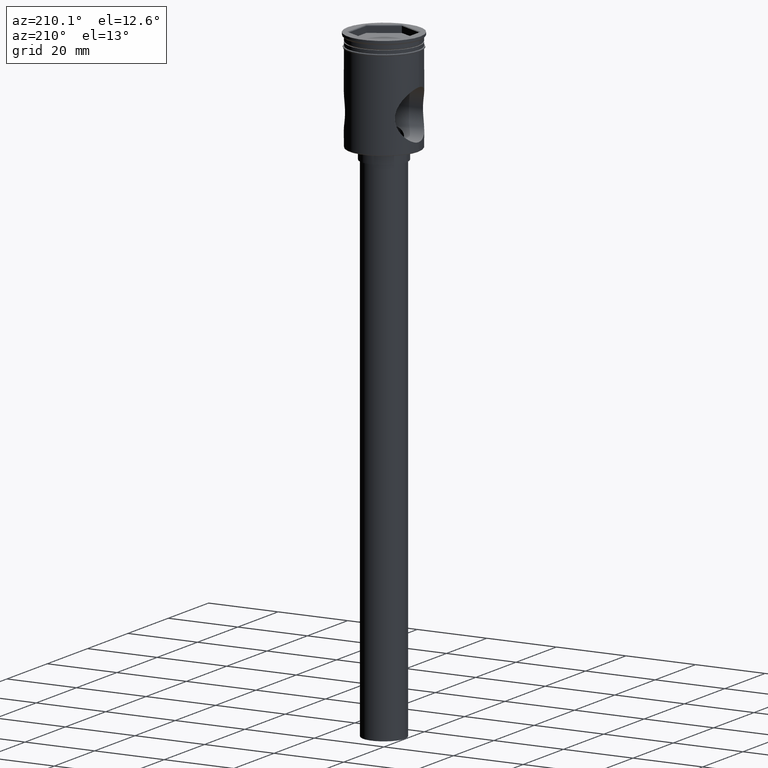
[diagram: clean part render]
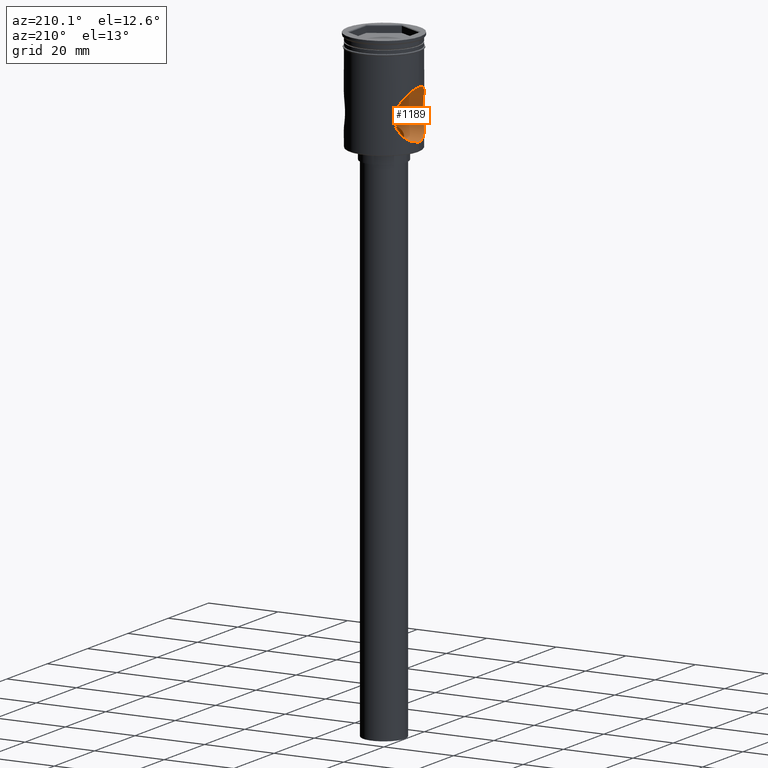
[diagram: same view with one face highlighted and labeled with its STEP entity id]
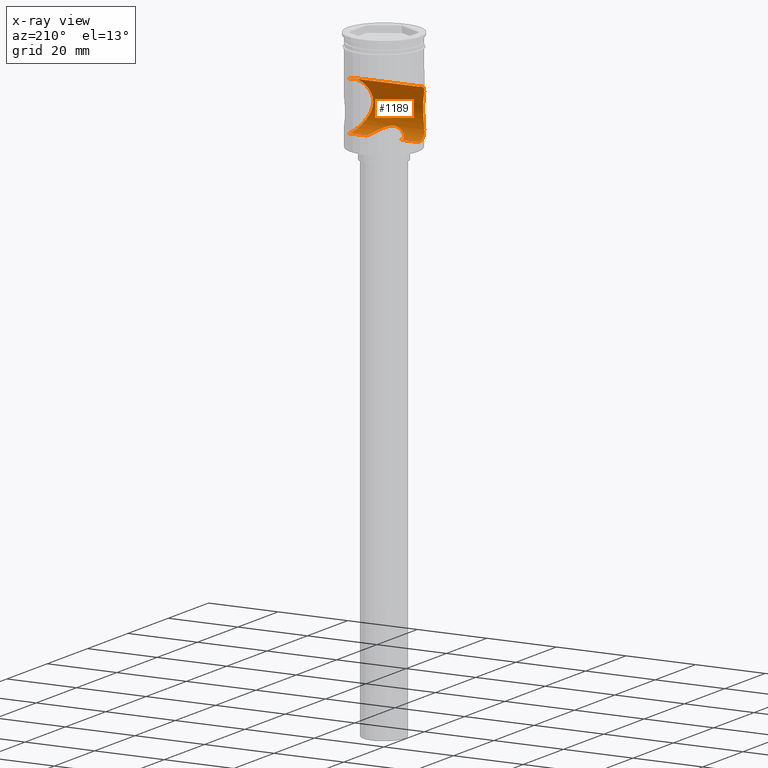
[diagram: x-ray of the same camera — body ghosted, the highlighted face saturated]
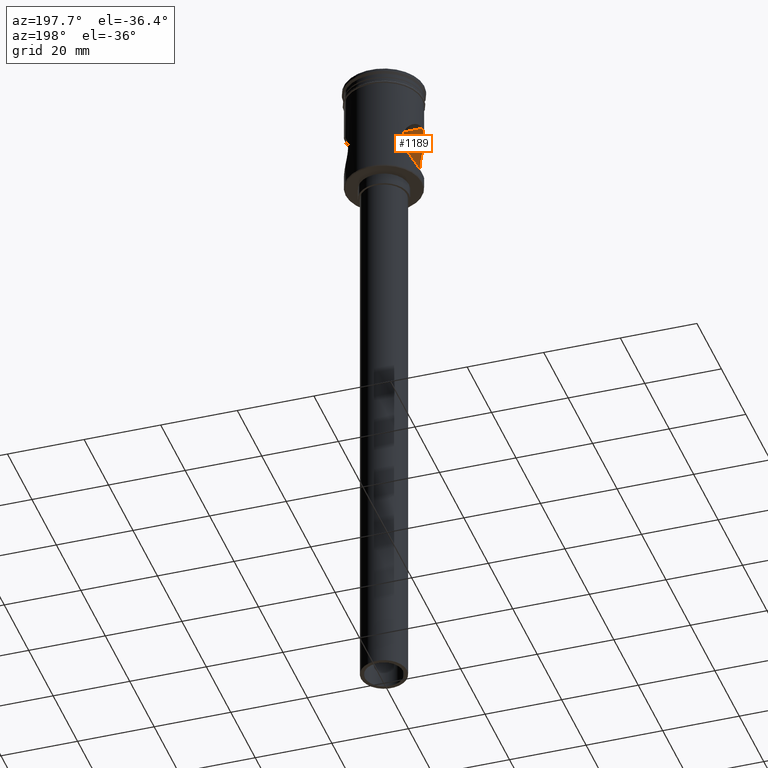
[diagram: same view with one face highlighted and labeled with its STEP entity id]
A machine part, auxiliary view. The second image highlights one B-rep face of the part: STEP entity #1189.
The next image is the same camera in x-ray: the body ghosted, the highlighted face saturated — about 0% of this face is hidden behind the body in this view.
A second angle (auxiliary view) of the same face is appended — the face is thin or edge-on in the first view.
In plain terms, the highlighted cylindrical surface (edge-blend (fillet) strip) has radius 7 mm, axis along (1, -0, -0).
Its self-contained STEP definition (entity closure, byte-faithful):
#5 = CARTESIAN_POINT ( 'NONE',  ( 7.140877080678153632, -7.000562488098498903, -19.52635574343557678 ) ) ;
#8 = CARTESIAN_POINT ( 'NONE',  ( -7.503273641266416050, -6.611317046147628496, -22.31171733569519944 ) ) ;
#13 = CARTESIAN_POINT ( 'NONE',  ( 9.347318963212909892, -3.576349491498993505, -13.96584429441085717 ) ) ;
#14 = CARTESIAN_POINT ( 'NONE',  ( 4.964146802801480796, -0.6862246212768612352, -26.97426726773488426 ) ) ;
#27 = CARTESIAN_POINT ( 'NONE',  ( -7.964400624432382614, -6.054727537725130837, -23.54044438658495153 ) ) ;
#32 = CARTESIAN_POINT ( 'NONE',  ( 8.503943671969897977, -5.273689396165734067, -24.62422230267287304 ) ) ;
#33 = CARTESIAN_POINT ( 'NONE',  ( 0.3425869708826779769, -4.991127287266564849, -24.90808053980701331 ) ) ;
#39 = CARTESIAN_POINT ( 'NONE',  ( -0.6797838618289542278, -4.956528279916297741, -24.94301948479047937 ) ) ;
#41 = CARTESIAN_POINT ( 'NONE',  ( -9.029975738911995009, -4.315133941133940887, -14.47019995321800501 ) ) ;
#55 = CARTESIAN_POINT ( 'NONE',  ( 9.965325511264428116, -0.9525671816038108197, -26.95070955909274346 ) ) ;
#61 = CARTESIAN_POINT ( 'NONE',  ( 9.826638545464751573, -1.868062541291061418, -26.75021854738501403 ) ) ;
#70 = DIRECTION ( 'NONE',  ( 1.000000000000000000, -0.000000000000000000, -0.000000000000000000 ) ) ;
#99 = VECTOR ( 'NONE', #70, 1000.000000000000000 ) ;
#102 = DIRECTION ( 'NONE',  ( 1.000000000000000000, -0.000000000000000000, -0.000000000000000000 ) ) ;
#103 = ORIENTED_EDGE ( 'NONE', *, *, #1160, .F. ) ;
#125 = CARTESIAN_POINT ( 'NONE',  ( -0.8464983709631617170, -4.930653397323766285, -24.96899257414971984 ) ) ;
#128 = CARTESIAN_POINT ( 'NONE',  ( -9.029024665842506181, -4.317593744654968368, -25.52832831042054451 ) ) ;
#139 = CARTESIAN_POINT ( 'NONE',  ( 7.723089038241833570, -6.353518016691835690, -22.94679462982523077 ) ) ;
#150 = CARTESIAN_POINT ( 'NONE',  ( -4.964727920279955242, -0.6817536040784992757, -26.97468307285332045 ) ) ;
#158 = CARTESIAN_POINT ( 'NONE',  ( 2.247388876111526379, -4.469310144529878848, -25.38840017492477585 ) ) ;
#160 = CARTESIAN_POINT ( 'NONE',  ( -8.315624236750039699, -5.562535070965513029, -24.27231501587448292 ) ) ;
#161 = ORIENTED_EDGE ( 'NONE', *, *, #378, .F. ) ;
#187 = CARTESIAN_POINT ( 'NONE',  ( -10.50000000000000000, 0.000000000000000000, -27.00000000000000355 ) ) ;
#229 = VERTEX_POINT ( 'NONE', #460 ) ;
#233 = CARTESIAN_POINT ( 'NONE',  ( 7.322655419112947150, -6.810500286563441641, -18.36528137380276249 ) ) ;
#234 = CARTESIAN_POINT ( 'NONE',  ( -4.725939526158935422, -1.665396429013263901, -26.80629165224697985 ) ) ;
#243 = CARTESIAN_POINT ( 'NONE',  ( 0.8487738258844477190, -4.930306376958239589, -24.96934192273835507 ) ) ;
#246 = CARTESIAN_POINT ( 'NONE',  ( -8.053311715077983379, -5.930176009131116643, -16.27420902905398847 ) ) ;
#250 = CARTESIAN_POINT ( 'NONE',  ( 7.377383315084116155, -6.751497144694275754, -18.13709901651008494 ) ) ;
#251 = CARTESIAN_POINT ( 'NONE',  ( 0.6797355553548922735, -4.956478286556073698, -24.94306880164815254 ) ) ;
#253 = CARTESIAN_POINT ( 'NONE',  ( -7.801002067758137315, -6.258004569467827238, -16.85560777748650096 ) ) ;
#257 = CARTESIAN_POINT ( 'NONE',  ( 9.991596185262174856, -0.4736682493084634071, -13.01198930438257939 ) ) ;
#258 = CARTESIAN_POINT ( 'NONE',  ( 4.307860968316788330, -2.558034936992927832, -26.52217995017509722 ) ) ;
#260 = CARTESIAN_POINT ( 'NONE',  ( -9.991574020215788110, -0.4743472386555552256, -13.01202085301403244 ) ) ;
#272 = CARTESIAN_POINT ( 'NONE',  ( -9.999999999999996447, 0.000000000000000000, -27.00000000000000355 ) ) ;
#301 = EDGE_CURVE ( 'NONE', #846, #498, #799, .T. ) ;
#347 = CYLINDRICAL_SURFACE ( 'NONE', #932, 6.999999999999999112 ) ;
#352 = CARTESIAN_POINT ( 'NONE',  ( 9.028965068475372391, -4.317457269925927044, -14.47181101200376219 ) ) ;
#353 = CARTESIAN_POINT ( 'NONE',  ( -2.249958316707900252, -4.476817073581181639, -25.38387512191017237 ) ) ;
#368 = CARTESIAN_POINT ( 'NONE',  ( 7.141989287018506438, -6.999427809131204548, -20.49012689816928301 ) ) ;
#371 = CARTESIAN_POINT ( 'NONE',  ( -9.343068346694407111, -3.570972421456891865, -13.97506645596566699 ) ) ;
#376 = CARTESIAN_POINT ( 'NONE',  ( 7.717429328536873356, -6.360383034377455225, -17.06803860621226221 ) ) ;
#377 = CARTESIAN_POINT ( 'NONE',  ( -1.334167910880776686, -4.821543316883925456, -25.07516089806349768 ) ) ;
#378 = EDGE_CURVE ( 'NONE', #972, #1120, #1009, .T. ) ;
#380 = CARTESIAN_POINT ( 'NONE',  ( -7.720495804876727597, -6.356685689900114511, -17.05985571267803991 ) ) ;
#384 = CARTESIAN_POINT ( 'NONE',  ( -2.527018621183717784, -4.325854713192931023, -25.50766513706255623 ) ) ;
#386 = CARTESIAN_POINT ( 'NONE',  ( -9.999999999999992895, -0.2371603752032593604, -12.99999999999999822 ) ) ;
#396 = CARTESIAN_POINT ( 'NONE',  ( -7.967226261725709691, -6.044961550507585990, -16.46329765270407464 ) ) ;
#422 = CARTESIAN_POINT ( 'NONE',  ( -10.50000000000000000, 0.000000000000000000, -27.00000000000000355 ) ) ;
#456 = CARTESIAN_POINT ( 'NONE',  ( 5.000000000000000888, 5.559607670071811640E-22, -27.00000000000000355 ) ) ;
#460 = CARTESIAN_POINT ( 'NONE',  ( -9.999999999999994671, 1.229780025839397734E-15, -13.00000000000000355 ) ) ;
#471 = LINE ( 'NONE', #1534, #736 ) ;
#478 = CARTESIAN_POINT ( 'NONE',  ( -3.295328282897207917, -3.773598239158960865, -25.90136906536974948 ) ) ;
#480 = CARTESIAN_POINT ( 'NONE',  ( -7.236111701560243858, -6.902383710959965057, -21.18811620976742915 ) ) ;
#486 = CARTESIAN_POINT ( 'NONE',  ( 5.000000000000005329, -0.3402173002877499908, -27.00000000000001421 ) ) ;
#488 = CARTESIAN_POINT ( 'NONE',  ( -9.735967975428483356, -2.325336189795351949, -13.38128717480536167 ) ) ;
#495 = CARTESIAN_POINT ( 'NONE',  ( -3.945877027014517591, -3.087718830034456463, -26.28892569280893809 ) ) ;
#497 = CARTESIAN_POINT ( 'NONE',  ( -7.141373392009655596, -7.000056148497765030, -19.76373034873125434 ) ) ;
#498 = VERTEX_POINT ( 'NONE', #1255 ) ;
#500 = CARTESIAN_POINT ( 'NONE',  ( 8.860185483737918588, -4.650373212660213085, -25.25064384002004303 ) ) ;
#501 = CARTESIAN_POINT ( 'NONE',  ( 3.744450800041878580, -3.328521687271348561, -26.16341259425989918 ) ) ;
#504 = CARTESIAN_POINT ( 'NONE',  ( -9.493823586986472662, -3.171854784083766532, -26.25704949909892605 ) ) ;
#510 = CARTESIAN_POINT ( 'NONE',  ( -9.485754788391531633, -3.172574074835091462, -13.75608760595409308 ) ) ;
#571 = ORIENTED_EDGE ( 'NONE', *, *, #1209, .T. ) ;
#592 = CARTESIAN_POINT ( 'NONE',  ( 8.853430568094129427, -4.663155653245506294, -14.76073180007296415 ) ) ;
#593 = CARTESIAN_POINT ( 'NONE',  ( -4.467234366927137046, -2.269772407451150720, -26.62927481249574413 ) ) ;
#599 = CARTESIAN_POINT ( 'NONE',  ( 9.832878540591767802, -1.879722866531851500, -13.24054240779418912 ) ) ;
#606 = CARTESIAN_POINT ( 'NONE',  ( 7.802583678074496376, -6.256037095215745580, -23.14831442975813758 ) ) ;
#617 = CARTESIAN_POINT ( 'NONE',  ( 8.056358060451358938, -5.926078000082590336, -23.73242365119358865 ) ) ;
#618 = CARTESIAN_POINT ( 'NONE',  ( -4.828544323845742170, -1.341070845160088787, -26.87840976764849188 ) ) ;
#627 = CARTESIAN_POINT ( 'NONE',  ( -7.141483849871206324, -6.999943458932624374, -20.23958506209359243 ) ) ;
#650 = LINE ( 'NONE', #187, #99 ) ;
#695 = DIRECTION ( 'NONE',  ( 0.000000000000000000, 0.000000000000000000, -1.000000000000000000 ) ) ;
#708 = CARTESIAN_POINT ( 'NONE',  ( -1.173690506892070884, -4.863162860794930431, -25.03506475786364049 ) ) ;
#710 = CARTESIAN_POINT ( 'NONE',  ( -9.932071413309429886, -1.186883990593140314, -13.09730212679606964 ) ) ;
#714 = CARTESIAN_POINT ( 'NONE',  ( 2.527940221282912070, -4.316828484673395749, -25.51131394923564599 ) ) ;
#717 = CARTESIAN_POINT ( 'NONE',  ( -9.832512437962641627, -1.881659858244549621, -13.24107387809922720 ) ) ;
#721 = CARTESIAN_POINT ( 'NONE',  ( 7.574535355013245486, -6.529908853628298537, -22.53201108648861961 ) ) ;
#722 = CARTESIAN_POINT ( 'NONE',  ( 3.053609598594927199, -3.971660509004135697, -25.76830406484121028 ) ) ;
#731 = CARTESIAN_POINT ( 'NONE',  ( -7.153235015771535643, -6.988014041043822289, -19.52714534028609350 ) ) ;
#736 = VECTOR ( 'NONE', #1164, 1000.000000000000000 ) ;
#739 = DIRECTION ( 'NONE',  ( 1.000000000000000000, -0.000000000000000000, -0.000000000000000000 ) ) ;
#740 = CARTESIAN_POINT ( 'NONE',  ( -5.000000000000000888, 0.000000000000000000, -27.00000000000001066 ) ) ;
#742 = CARTESIAN_POINT ( 'NONE',  ( -7.325106434378655607, -6.807865243658027588, -21.64544578927128882 ) ) ;
#758 = B_SPLINE_CURVE_WITH_KNOTS ( 'NONE', 3,
 ( #740, #1420, #150, #618, #234, #593, #964, #495, #844, #478, #1328, #384, #353, #826, #1200, #377, #708, #125, #39, #1305, #834, #1087, #33, #251, #243, #851, #1295, #1076, #158, #714, #1068, #722, #1321, #501, #1193, #258, #1211, #970, #1443, #14, #486, #858 ),
 .UNSPECIFIED., .F., .F.,
 ( 4, 2, 2, 2, 2, 2, 2, 2, 2, 2, 2, 2, 2, 2, 2, 2, 2, 2, 2, 2, 4 ),
 ( 0.000000000000000000, 0.001017778397128051363, 0.002035556794256102725, 0.003053335191384154088, 0.004071113588512205450, 0.005088891985640256813, 0.006106670382768309910, 0.006615559581332337326, 0.007124448779896364742, 0.007633337978460393025, 0.008142227177024421308, 0.008651116375588449592, 0.009160005574152477875, 0.01017778397128053097, 0.01068667316984455579, 0.01119556236840858233, 0.01221334076553663196, 0.01323111916266468159, 0.01424889755979273122, 0.01526667595692078085, 0.01628445435404882874 ),
 .UNSPECIFIED. ) ;
#799 = B_SPLINE_CURVE_WITH_KNOTS ( 'NONE', 3,
 ( #1412, #1053, #257, #1192, #1533, #599, #1185, #1067, #13, #352, #592, #938, #1061, #850, #1294, #1435, #376, #1426, #1176, #250, #233, #1320, #5, #368, #1075, #945, #843, #1312, #721, #139, #606, #1199, #617, #1086, #32, #500, #969, #1442, #1337, #988, #874, #61, #886, #55, #1357, #1223 ),
 .UNSPECIFIED., .F., .F.,
 ( 4, 2, 2, 2, 2, 2, 2, 2, 2, 2, 2, 2, 2, 2, 2, 2, 2, 2, 2, 2, 2, 2, 4 ),
 ( 0.02273717132267115415, 0.02344677004960173464, 0.02415636877653231512, 0.02557556623039347263, 0.02699476368425463360, 0.02841396113811579111, 0.02983315859197695208, 0.03054275731890752910, 0.03125235604583810611, 0.03196195477276868313, 0.03267155349969926015, 0.03409075095356042112, 0.03550994840742158210, 0.03621954713435215911, 0.03692914586128273613, 0.03763874458821332009, 0.03834834331514389710, 0.03976754076900505808, 0.04118673822286621211, 0.04260593567672736615, 0.04331553440365794316, 0.04402513313058852018, 0.04544433058444967422 ),
 .UNSPECIFIED. ) ;
#826 = CARTESIAN_POINT ( 'NONE',  ( -1.804206400145115019, -4.665928648188177874, -25.21882270820486127 ) ) ;
#834 = CARTESIAN_POINT ( 'NONE',  ( -0.1671611873766323253, -5.000102145928885022, -24.89887523335345065 ) ) ;
#837 = CARTESIAN_POINT ( 'NONE',  ( -9.965446655919851793, -0.9519641332654177335, -26.95088558220736275 ) ) ;
#838 = VECTOR ( 'NONE', #739, 1000.000000000000000 ) ;
#843 = CARTESIAN_POINT ( 'NONE',  ( 7.381411116935109540, -6.747102913955163039, -21.87877048370861033 ) ) ;
#844 = CARTESIAN_POINT ( 'NONE',  ( -3.742882148268595000, -3.330174978408511510, -26.16247800235169052 ) ) ;
#846 = VERTEX_POINT ( 'NONE', #1172 ) ;
#847 = CARTESIAN_POINT ( 'NONE',  ( -9.957729828106902659, -0.9487746701410776362, -13.06049825370512885 ) ) ;
#850 = CARTESIAN_POINT ( 'NONE',  ( 8.050554706296177088, -5.933943087171876130, -16.28011583648020988 ) ) ;
#851 = CARTESIAN_POINT ( 'NONE',  ( 1.343304311183351141, -4.827927654831069226, -25.06953992219781924 ) ) ;
#858 = CARTESIAN_POINT ( 'NONE',  ( 5.000000000000000888, 5.559607670071811640E-22, -27.00000000000000355 ) ) ;
#860 = CARTESIAN_POINT ( 'NONE',  ( -9.999999999999994671, 1.229780025839397734E-15, -13.00000000000000355 ) ) ;
#870 = CARTESIAN_POINT ( 'NONE',  ( -7.234464554488559962, -6.904114004842420549, -18.82145945963318567 ) ) ;
#874 = CARTESIAN_POINT ( 'NONE',  ( 9.730782946235684960, -2.316105786581691195, -26.60989879506474054 ) ) ;
#886 = CARTESIAN_POINT ( 'NONE',  ( 9.867116120145132285, -1.641278058953922203, -26.80890176429205596 ) ) ;
#902 = CARTESIAN_POINT ( 'NONE',  ( -5.000000000000000888, 0.000000000000000000, -27.00000000000001066 ) ) ;
#903 = ORIENTED_EDGE ( 'NONE', *, *, #1388, .F. ) ;
#932 = AXIS2_PLACEMENT_3D ( 'NONE', #1270, #102, #695 ) ;
#938 = CARTESIAN_POINT ( 'NONE',  ( 8.497179343882919511, -5.284524261307589121, -15.38819392766633065 ) ) ;
#945 = CARTESIAN_POINT ( 'NONE',  ( 7.326263957022343121, -6.806624336356016158, -21.65073055260621260 ) ) ;
#948 = CARTESIAN_POINT ( 'NONE',  ( -9.267396788860443380, -3.762388530127550812, -14.09286872329777296 ) ) ;
#964 = CARTESIAN_POINT ( 'NONE',  ( -4.309762970511364699, -2.555366162349214321, -26.52339617985467157 ) ) ;
#966 = CARTESIAN_POINT ( 'NONE',  ( -7.379165411094855465, -6.749558967525724817, -21.87002777218120286 ) ) ;
#969 = CARTESIAN_POINT ( 'NONE',  ( 9.035512705743391493, -4.303590503429355785, -25.53881697926559369 ) ) ;
#970 = CARTESIAN_POINT ( 'NONE',  ( 4.725794543730263086, -1.666404458266061539, -26.80617625524858383 ) ) ;
#972 = VERTEX_POINT ( 'NONE', #272 ) ;
#973 = CARTESIAN_POINT ( 'NONE',  ( -8.498707828545159160, -5.282283036785493380, -15.38527946463392659 ) ) ;
#974 = EDGE_CURVE ( 'NONE', #972, #229, #1091, .T. ) ;
#980 = CARTESIAN_POINT ( 'NONE',  ( -8.500359578522523663, -5.279417043634754947, -24.61763755135370957 ) ) ;
#988 = CARTESIAN_POINT ( 'NONE',  ( 9.675488818793544610, -2.536388918100088485, -26.52836702033824778 ) ) ;
#1009 = LINE ( 'NONE', #422, #838 ) ;
#1053 = CARTESIAN_POINT ( 'NONE',  ( 9.999999999999996447, -0.2368473339933005184, -13.00000000000000178 ) ) ;
#1061 = CARTESIAN_POINT ( 'NONE',  ( 8.315544161946235135, -5.562748588078726186, -15.72768175892419151 ) ) ;
#1064 = CARTESIAN_POINT ( 'NONE',  ( -9.349377247001186220, -3.571280898155816619, -26.03738208151085942 ) ) ;
#1067 = CARTESIAN_POINT ( 'NONE',  ( 9.492393824703038163, -3.176669941205827907, -13.74509325342724075 ) ) ;
#1068 = CARTESIAN_POINT ( 'NONE',  ( 2.662908585184199151, -4.234804902448967567, -25.57478987801387049 ) ) ;
#1071 = ORIENTED_EDGE ( 'NONE', *, *, #301, .T. ) ;
#1075 = CARTESIAN_POINT ( 'NONE',  ( 7.191763660842745765, -6.949507115151161152, -20.96152780032075569 ) ) ;
#1076 = CARTESIAN_POINT ( 'NONE',  ( 2.101402132332331085, -4.539851137495589661, -25.32886241154339402 ) ) ;
#1079 = CARTESIAN_POINT ( 'NONE',  ( -9.999999999999998224, -0.4814323775651352944, -27.00000000000000711 ) ) ;
#1086 = CARTESIAN_POINT ( 'NONE',  ( 8.322069302564294446, -5.553051878775055350, -24.28499264081531805 ) ) ;
#1087 = CARTESIAN_POINT ( 'NONE',  ( 0.1732169650707084119, -4.999896020448773903, -24.89908560921188752 ) ) ;
#1091 = B_SPLINE_CURVE_WITH_KNOTS ( 'NONE', 3,
 ( #1195, #1079, #837, #1453, #1316, #504, #1064, #128, #1213, #980, #160, #27, #1204, #1308, #8, #966, #742, #480, #1430, #1331, #627, #497, #731, #1097, #870, #1181, #1439, #380, #253, #396, #246, #1340, #973, #1445, #41, #948, #371, #510, #1422, #488, #717, #710, #847, #260, #386, #860 ),
 .UNSPECIFIED., .F., .F.,
 ( 4, 2, 2, 2, 2, 2, 2, 2, 2, 2, 2, 2, 2, 2, 2, 2, 2, 2, 2, 2, 2, 2, 4 ),
 ( 0.000000000000000000, 0.001421073207666954290, 0.002842146415333908580, 0.004263219623000863087, 0.005684292830667816293, 0.007105366038334770366, 0.008526439246001722705, 0.009236975849835196706, 0.009947512453668670707, 0.01065804905750214297, 0.01136858566133561697, 0.01207912226516908924, 0.01278965886900256151, 0.01421073207666950777, 0.01492126868050297657, 0.01563180528433644884, 0.01705287849200338296, 0.01847395169967032055, 0.01918448830350378762, 0.01989502490733725468, 0.02131609811500418880, 0.02202663471883765586, 0.02273717132267112292 ),
 .UNSPECIFIED. ) ;
#1097 = CARTESIAN_POINT ( 'NONE',  ( -7.199668910925415055, -6.940164191266632976, -19.05657392165621999 ) ) ;
#1120 = VERTEX_POINT ( 'NONE', #902 ) ;
#1136 = EDGE_LOOP ( 'NONE', ( #1334, #571, #1071, #103, #903, #161 ) ) ;
#1160 = EDGE_CURVE ( 'NONE', #1259, #498, #650, .T. ) ;
#1164 = DIRECTION ( 'NONE',  ( 1.000000000000000000, -0.000000000000000000, -0.000000000000000000 ) ) ;
#1172 = CARTESIAN_POINT ( 'NONE',  ( 9.999999999999994671, -5.133226810943367768E-18, -13.00000000000000355 ) ) ;
#1176 = CARTESIAN_POINT ( 'NONE',  ( 7.500597748671954612, -6.614342876288897166, -17.69704926583546722 ) ) ;
#1181 = CARTESIAN_POINT ( 'NONE',  ( -7.368839572955796058, -6.761454996973015774, -18.12764364703030395 ) ) ;
#1185 = CARTESIAN_POINT ( 'NONE',  ( 9.736384942666981956, -2.323699784143519409, -13.38067151163704516 ) ) ;
#1189 = ADVANCED_FACE ( 'NONE', ( #1280 ), #347, .F. ) ;
#1192 = CARTESIAN_POINT ( 'NONE',  ( 9.957864273581442660, -0.9472565907286202291, -13.06030547907275619 ) ) ;
#1193 = CARTESIAN_POINT ( 'NONE',  ( 3.948916065893333549, -3.083386249848237615, -26.29087460339095017 ) ) ;
#1195 = CARTESIAN_POINT ( 'NONE',  ( -9.999999999999996447, 0.000000000000000000, -27.00000000000000355 ) ) ;
#1199 = CARTESIAN_POINT ( 'NONE',  ( 7.969012120586810966, -6.042611853496006269, -23.54072391938827025 ) ) ;
#1200 = CARTESIAN_POINT ( 'NONE',  ( -1.649477999012780138, -4.722976424013229924, -25.16701381806123550 ) ) ;
#1204 = CARTESIAN_POINT ( 'NONE',  ( -7.796463043157197959, -6.266459839169562507, -23.15209899686185580 ) ) ;
#1209 = EDGE_CURVE ( 'NONE', #229, #846, #471, .T. ) ;
#1211 = CARTESIAN_POINT ( 'NONE',  ( 4.464232892150691079, -2.276106889563759061, -26.62723746845691153 ) ) ;
#1213 = CARTESIAN_POINT ( 'NONE',  ( -8.856372138511659386, -4.657577678256725306, -25.24421500772974625 ) ) ;
#1223 = CARTESIAN_POINT ( 'NONE',  ( 9.999999999999994671, 0.000000000000000000, -27.00000000000001066 ) ) ;
#1255 = CARTESIAN_POINT ( 'NONE',  ( 9.999999999999994671, 0.000000000000000000, -27.00000000000001066 ) ) ;
#1259 = VERTEX_POINT ( 'NONE', #456 ) ;
#1270 = CARTESIAN_POINT ( 'NONE',  ( -10.50000000000000000, 0.000000000000000000, -20.00000000000000355 ) ) ;
#1280 = FACE_OUTER_BOUND ( 'NONE', #1136, .T. ) ;
#1294 = CARTESIAN_POINT ( 'NONE',  ( 7.963207023572480558, -6.050255927956311730, -16.47232531239752618 ) ) ;
#1295 = CARTESIAN_POINT ( 'NONE',  ( 1.654885310970872991, -4.729261221067855736, -25.16354336769078870 ) ) ;
#1305 = CARTESIAN_POINT ( 'NONE',  ( -0.3393453633138837633, -4.991404953799126964, -24.90779897752728544 ) ) ;
#1308 = CARTESIAN_POINT ( 'NONE',  ( -7.573222039985393117, -6.531435267832767622, -22.52812481744789608 ) ) ;
#1312 = CARTESIAN_POINT ( 'NONE',  ( 7.505468983612138878, -6.608824641700789648, -22.31875249157932117 ) ) ;
#1316 = CARTESIAN_POINT ( 'NONE',  ( -9.735585976469913305, -2.326309258653755929, -26.61812786508322759 ) ) ;
#1320 = CARTESIAN_POINT ( 'NONE',  ( 7.189382404875344967, -6.951946978929631982, -19.05590796920065344 ) ) ;
#1321 = CARTESIAN_POINT ( 'NONE',  ( 3.295338637850685704, -3.773686748851627470, -25.90135575535477486 ) ) ;
#1328 = CARTESIAN_POINT ( 'NONE',  ( -3.048977935786500115, -3.975245358282916808, -25.76583199574162819 ) ) ;
#1331 = CARTESIAN_POINT ( 'NONE',  ( -7.153700441637877994, -6.987541224765999814, -20.48080140017840378 ) ) ;
#1334 = ORIENTED_EDGE ( 'NONE', *, *, #974, .T. ) ;
#1337 = CARTESIAN_POINT ( 'NONE',  ( 9.494221684495640190, -3.170672659151725803, -26.25765240908376441 ) ) ;
#1340 = CARTESIAN_POINT ( 'NONE',  ( -8.316470757484857756, -5.561257273121389844, -15.72607428983809008 ) ) ;
#1357 = CARTESIAN_POINT ( 'NONE',  ( 9.999999999999996447, -0.4807969081117849930, -27.00000000000000711 ) ) ;
#1388 = EDGE_CURVE ( 'NONE', #1120, #1259, #758, .T. ) ;
#1412 = CARTESIAN_POINT ( 'NONE',  ( 9.999999999999994671, -5.133226810943367768E-18, -13.00000000000000355 ) ) ;
#1420 = CARTESIAN_POINT ( 'NONE',  ( -5.000000000000001776, -0.3448249822885359195, -27.00000000000001066 ) ) ;
#1422 = CARTESIAN_POINT ( 'NONE',  ( -9.553141715981869453, -2.964211287661886907, -13.65436461758241826 ) ) ;
#1426 = CARTESIAN_POINT ( 'NONE',  ( 7.569330506494650557, -6.535933251526300225, -17.48356472559869701 ) ) ;
#1430 = CARTESIAN_POINT ( 'NONE',  ( -7.201179731105406212, -6.938600208746064979, -20.95536877560809330 ) ) ;
#1435 = CARTESIAN_POINT ( 'NONE',  ( 7.796802139286404199, -6.263237125868980293, -16.86600156342441181 ) ) ;
#1439 = CARTESIAN_POINT ( 'NONE',  ( -7.495754172928653425, -6.623269820279322317, -17.68917710553389711 ) ) ;
#1442 = CARTESIAN_POINT ( 'NONE',  ( 9.351609315107900500, -3.564938189428362492, -26.04074502495871357 ) ) ;
#1443 = CARTESIAN_POINT ( 'NONE',  ( 4.827093604320183751, -1.346411915329733366, -26.87738926533192441 ) ) ;
#1445 = CARTESIAN_POINT ( 'NONE',  ( -8.857763224790602408, -4.655166966848104160, -14.75332674821394185 ) ) ;
#1453 = CARTESIAN_POINT ( 'NONE',  ( -9.834047061028449832, -1.872933838790286742, -26.76115115372198616 ) ) ;
#1533 = CARTESIAN_POINT ( 'NONE',  ( 9.932287513067294071, -1.185065133237713564, -13.09699146176596152 ) ) ;
#1534 = CARTESIAN_POINT ( 'NONE',  ( -10.50000000000000000, 8.572527594031471218E-16, -13.00000000000000533 ) ) ;